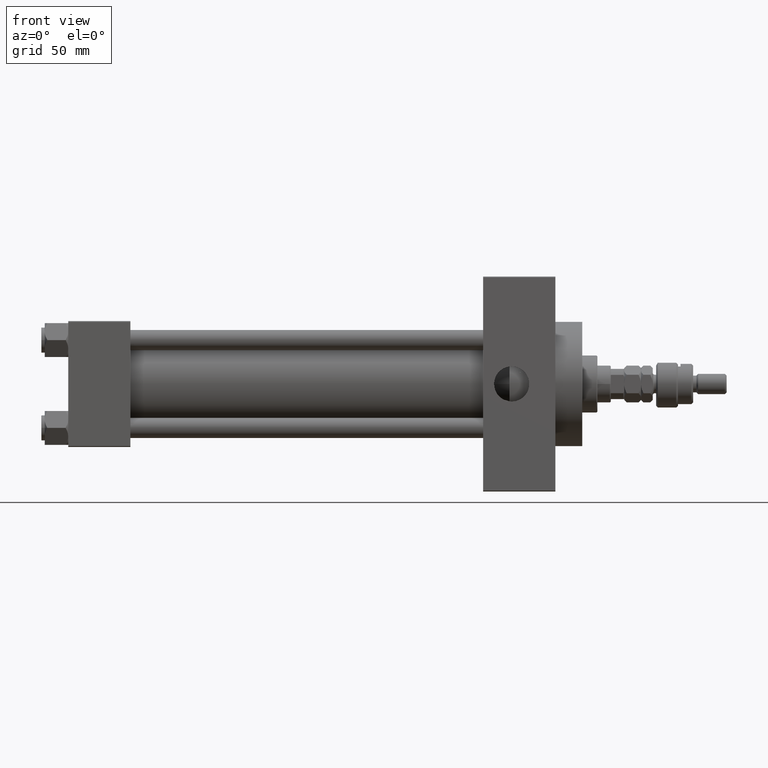
[diagram: clean part render]
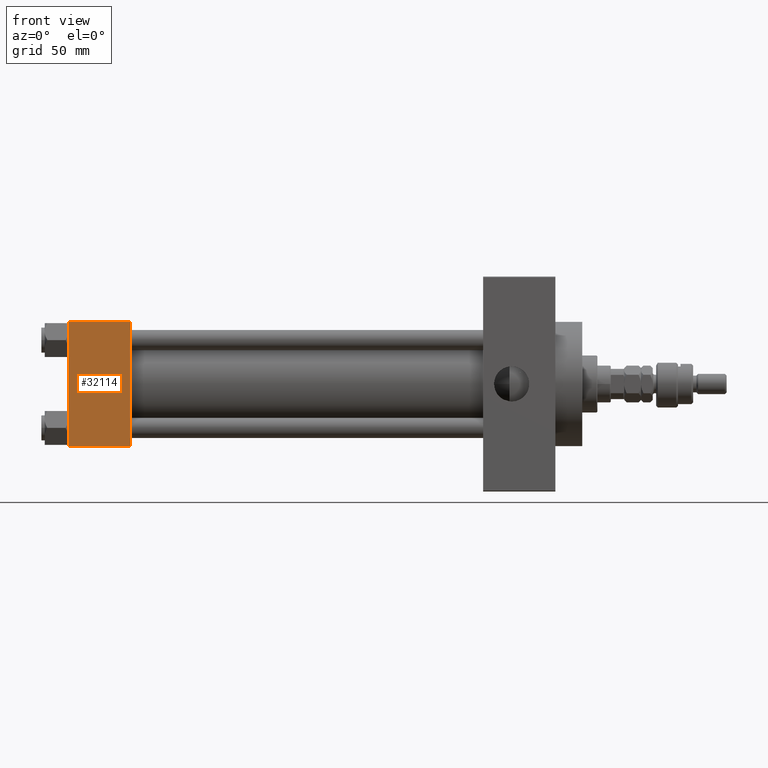
[diagram: same view with one face highlighted and labeled with its STEP entity id]
A machine part, front view. The second image highlights one B-rep face of the part: STEP entity #32114.
In plain terms, the highlighted planar face has unit normal (0, 1, 0).
Its self-contained STEP definition (entity closure, byte-faithful):
#6960 = FACE_OUTER_BOUND ( 'NONE', #52300, .T. ) ;
#7772 = LINE ( 'NONE', #28135, #25044 ) ;
#10376 = ORIENTED_EDGE ( 'NONE', *, *, #47371, .T. ) ;
#12374 = VERTEX_POINT ( 'NONE', #13703 ) ;
#13703 = CARTESIAN_POINT ( 'NONE',  ( 37.00000000000000000, -37.50000000000000711, 36.99999999999999289 ) ) ;
#13870 = CARTESIAN_POINT ( 'NONE',  ( 37.00000000000000000, -37.50000000000000711, 36.99999999999999289 ) ) ;
#14125 = DIRECTION ( 'NONE',  ( 0.000000000000000000, -9.251858538542971581E-17, 1.000000000000000000 ) ) ;
#14651 = EDGE_CURVE ( 'NONE', #12374, #48591, #23698, .T. ) ;
#17200 = VERTEX_POINT ( 'NONE', #25804 ) ;
#17308 = DIRECTION ( 'NONE',  ( -1.000000000000000000, 0.000000000000000000, 0.000000000000000000 ) ) ;
#18354 = DIRECTION ( 'NONE',  ( -0.000000000000000000, 1.000000000000000000, 9.251858538542971581E-17 ) ) ;
#23215 = EDGE_CURVE ( 'NONE', #17200, #30496, #7772, .T. ) ;
#23698 = LINE ( 'NONE', #31643, #41628 ) ;
#23894 = DIRECTION ( 'NONE',  ( 0.000000000000000000, 9.251858538542971581E-17, -1.000000000000000000 ) ) ;
#25044 = VECTOR ( 'NONE', #23894, 1000.000000000000000 ) ;
#25804 = CARTESIAN_POINT ( 'NONE',  ( 0.000000000000000000, -37.50000000000000711, 36.99999999999999289 ) ) ;
#26371 = CARTESIAN_POINT ( 'NONE',  ( 37.00000000000000000, -37.50000000000000000, -37.00000000000003553 ) ) ;
#27784 = DIRECTION ( 'NONE',  ( 1.000000000000000000, 0.000000000000000000, 0.000000000000000000 ) ) ;
#28135 = CARTESIAN_POINT ( 'NONE',  ( 0.000000000000000000, -37.50000000000000711, 37.49999999999999289 ) ) ;
#28485 = CARTESIAN_POINT ( 'NONE',  ( 0.000000000000000000, -37.50000000000000000, -37.00000000000003553 ) ) ;
#30496 = VERTEX_POINT ( 'NONE', #28485 ) ;
#30776 = PLANE ( 'NONE',  #31044 ) ;
#31044 = AXIS2_PLACEMENT_3D ( 'NONE', #50386, #18354, #14125 ) ;
#31643 = CARTESIAN_POINT ( 'NONE',  ( 37.00000000000000000, -37.50000000000000711, 37.49999999999999289 ) ) ;
#31748 = LINE ( 'NONE', #47919, #39128 ) ;
#31907 = VECTOR ( 'NONE', #17308, 1000.000000000000000 ) ;
#32003 = EDGE_CURVE ( 'NONE', #12374, #17200, #41655, .T. ) ;
#32114 = ADVANCED_FACE ( 'NONE', ( #6960 ), #30776, .F. ) ;
#35330 = ORIENTED_EDGE ( 'NONE', *, *, #32003, .T. ) ;
#39128 = VECTOR ( 'NONE', #27784, 1000.000000000000000 ) ;
#41628 = VECTOR ( 'NONE', #43564, 1000.000000000000000 ) ;
#41655 = LINE ( 'NONE', #13870, #31907 ) ;
#42391 = ORIENTED_EDGE ( 'NONE', *, *, #14651, .F. ) ;
#43564 = DIRECTION ( 'NONE',  ( 0.000000000000000000, 9.251858538542971581E-17, -1.000000000000000000 ) ) ;
#47371 = EDGE_CURVE ( 'NONE', #30496, #48591, #31748, .T. ) ;
#47919 = CARTESIAN_POINT ( 'NONE',  ( 37.00000000000000000, -37.50000000000000000, -37.00000000000003553 ) ) ;
#48591 = VERTEX_POINT ( 'NONE', #26371 ) ;
#48908 = ORIENTED_EDGE ( 'NONE', *, *, #23215, .T. ) ;
#50386 = CARTESIAN_POINT ( 'NONE',  ( 37.00000000000000000, -37.50000000000000711, 37.49999999999999289 ) ) ;
#52300 = EDGE_LOOP ( 'NONE', ( #48908, #10376, #42391, #35330 ) ) ;